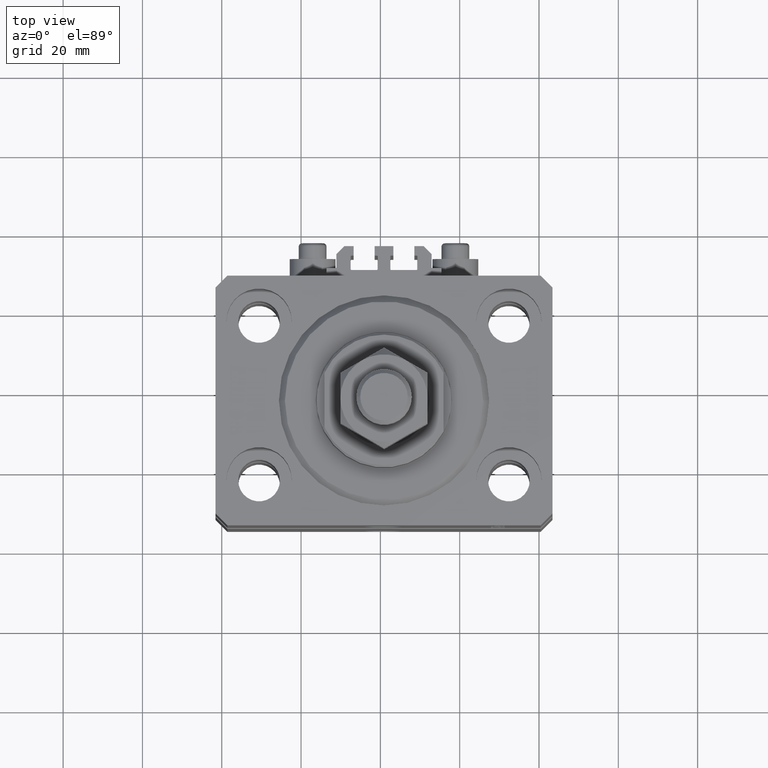
[diagram: clean part render]
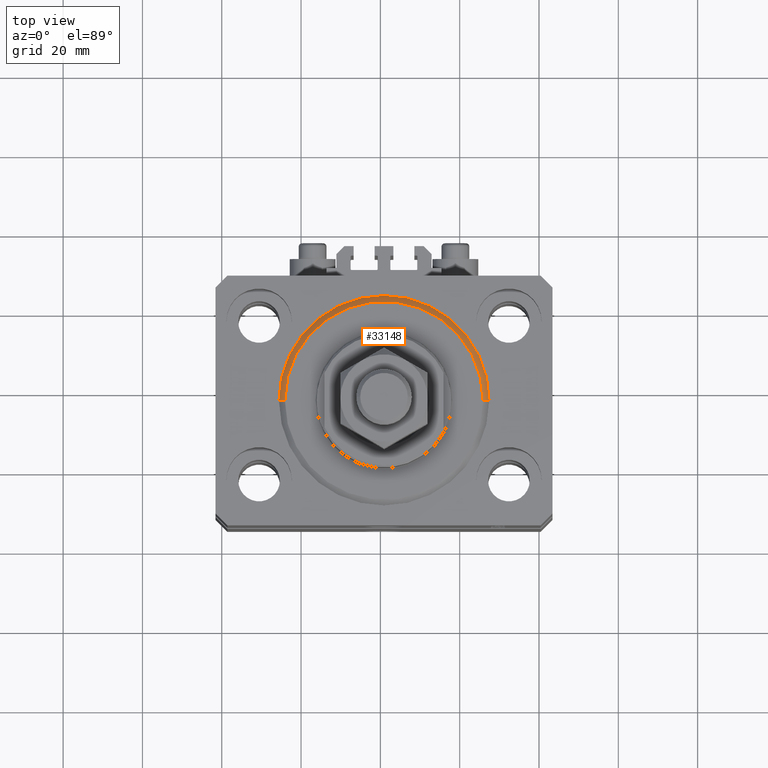
[diagram: same view with one face highlighted and labeled with its STEP entity id]
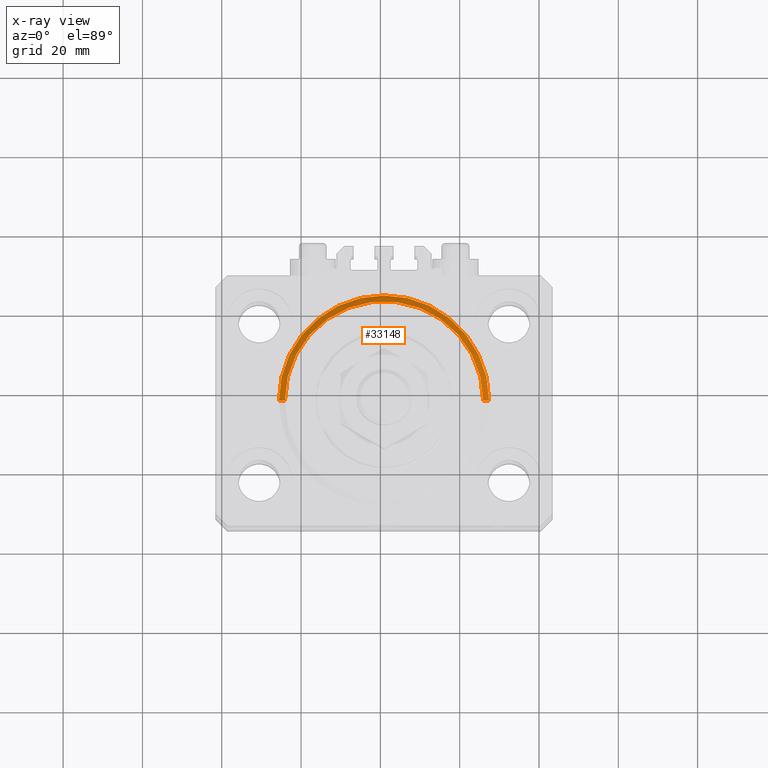
[diagram: x-ray of the same camera — body ghosted, the highlighted face saturated]
A machine part, top view. The second image highlights one B-rep face of the part: STEP entity #33148.
The next image is the same camera in x-ray: the body ghosted, the highlighted face saturated — about 0% of this face is hidden behind the body in this view.
In plain terms, the highlighted conical surface has half-angle 45 deg.
Its self-contained STEP definition (entity closure, byte-faithful):
#334 = CARTESIAN_POINT ( 'NONE',  ( 0.000000000000000000, 0.000000000000000000, 1.500000000000018652 ) ) ;
#2844 = CARTESIAN_POINT ( 'NONE',  ( -24.99999999999998224, 3.153465507804433615E-15, 0.000000000000000000 ) ) ;
#2953 = ORIENTED_EDGE ( 'NONE', *, *, #27791, .F. ) ;
#3190 = VERTEX_POINT ( 'NONE', #32713 ) ;
#3349 = DIRECTION ( 'NONE',  ( -0.000000000000000000, -0.000000000000000000, -1.000000000000000000 ) ) ;
#6896 = DIRECTION ( 'NONE',  ( -0.7071067811865483499, 8.659560562354942719E-17, 0.7071067811865466846 ) ) ;
#7563 = CIRCLE ( 'NONE', #13894, 26.50000000000000355 ) ;
#9836 = AXIS2_PLACEMENT_3D ( 'NONE', #18259, #3349, #48625 ) ;
#10812 = DIRECTION ( 'NONE',  ( 0.7071067811865483499, 0.000000000000000000, 0.7071067811865466846 ) ) ;
#13509 = EDGE_LOOP ( 'NONE', ( #39031, #34488, #2953, #35537 ) ) ;
#13894 = AXIS2_PLACEMENT_3D ( 'NONE', #334, #41387, #26203 ) ;
#16159 = EDGE_CURVE ( 'NONE', #22248, #3190, #44178, .T. ) ;
#16282 = VERTEX_POINT ( 'NONE', #49114 ) ;
#18001 = CARTESIAN_POINT ( 'NONE',  ( 24.99999999999998224, 0.000000000000000000, 0.000000000000000000 ) ) ;
#18259 = CARTESIAN_POINT ( 'NONE',  ( 0.000000000000000000, 0.000000000000000000, 0.000000000000000000 ) ) ;
#18544 = CARTESIAN_POINT ( 'NONE',  ( -26.50000000000000355, 3.245314017740486554E-15, 1.500000000000018652 ) ) ;
#18547 = CIRCLE ( 'NONE', #9836, 24.99999999999998224 ) ;
#19626 = AXIS2_PLACEMENT_3D ( 'NONE', #31950, #23757, #32202 ) ;
#22248 = VERTEX_POINT ( 'NONE', #18001 ) ;
#23757 = DIRECTION ( 'NONE',  ( -0.000000000000000000, -0.000000000000000000, 1.000000000000000000 ) ) ;
#24253 = FACE_OUTER_BOUND ( 'NONE', #13509, .T. ) ;
#26013 = CONICAL_SURFACE ( 'NONE', #19626, 26.50000000000000355, 0.7853981633974495002 ) ;
#26203 = DIRECTION ( 'NONE',  ( 1.000000000000000000, 0.000000000000000000, 0.000000000000000000 ) ) ;
#27716 = VERTEX_POINT ( 'NONE', #2844 ) ;
#27791 = EDGE_CURVE ( 'NONE', #3190, #16282, #7563, .T. ) ;
#29578 = VECTOR ( 'NONE', #6896, 1000.000000000000000 ) ;
#31950 = CARTESIAN_POINT ( 'NONE',  ( 0.000000000000000000, 0.000000000000000000, 1.500000000000018652 ) ) ;
#32202 = DIRECTION ( 'NONE',  ( 1.000000000000000000, 0.000000000000000000, 0.000000000000000000 ) ) ;
#32705 = CARTESIAN_POINT ( 'NONE',  ( 26.50000000000000355, 0.000000000000000000, 1.500000000000018652 ) ) ;
#32713 = CARTESIAN_POINT ( 'NONE',  ( 26.50000000000000355, 3.245314017740486554E-15, 1.500000000000018652 ) ) ;
#33148 = ADVANCED_FACE ( 'NONE', ( #24253 ), #26013, .T. ) ;
#34488 = ORIENTED_EDGE ( 'NONE', *, *, #42183, .T. ) ;
#35537 = ORIENTED_EDGE ( 'NONE', *, *, #16159, .F. ) ;
#39031 = ORIENTED_EDGE ( 'NONE', *, *, #45619, .F. ) ;
#41387 = DIRECTION ( 'NONE',  ( -0.000000000000000000, -0.000000000000000000, 1.000000000000000000 ) ) ;
#42183 = EDGE_CURVE ( 'NONE', #27716, #16282, #44954, .T. ) ;
#44178 = LINE ( 'NONE', #32705, #47789 ) ;
#44954 = LINE ( 'NONE', #18544, #29578 ) ;
#45619 = EDGE_CURVE ( 'NONE', #27716, #22248, #18547, .T. ) ;
#47789 = VECTOR ( 'NONE', #10812, 1000.000000000000000 ) ;
#48625 = DIRECTION ( 'NONE',  ( 1.000000000000000000, 0.000000000000000000, 0.000000000000000000 ) ) ;
#49114 = CARTESIAN_POINT ( 'NONE',  ( -26.50000000000000355, 0.000000000000000000, 1.500000000000018652 ) ) ;